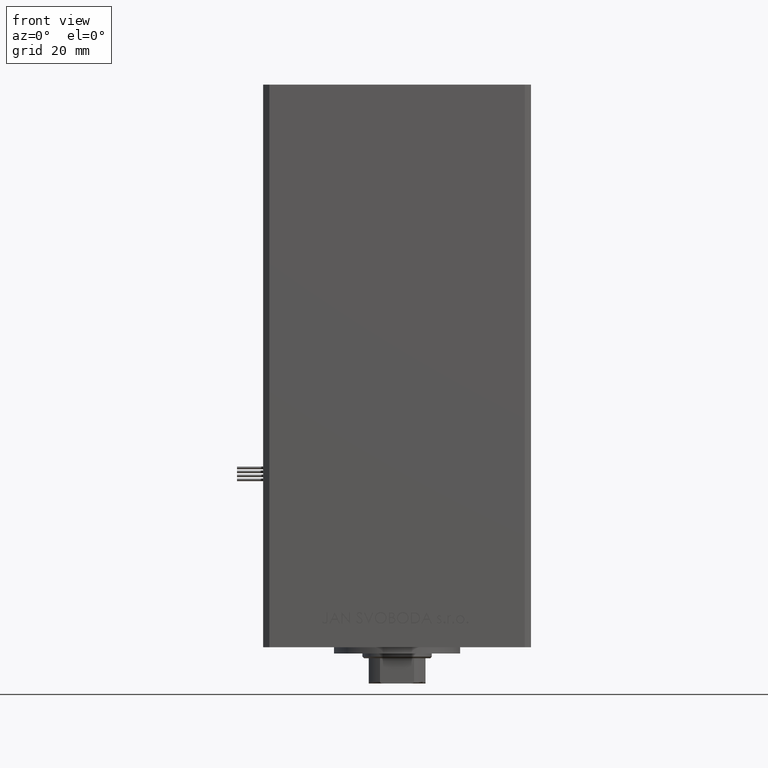
[diagram: clean part render]
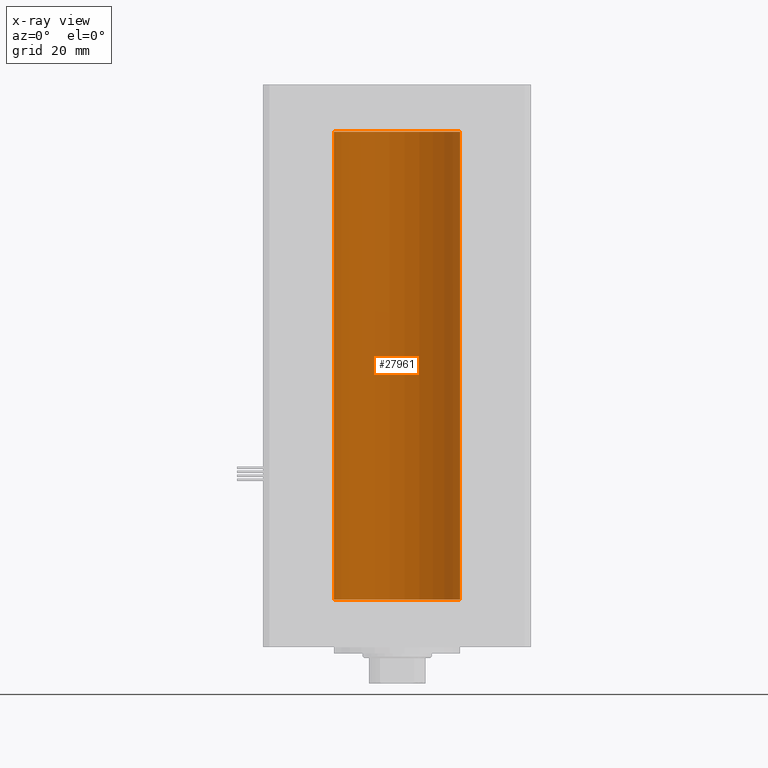
[diagram: x-ray — body ghosted, one internal face saturated and labeled with its STEP entity id]
A machine part, front view, then the same camera in x-ray: the body is ghosted and one INTERNAL B-rep face — a face not visible from any outside direction — is saturated and labeled: STEP entity #27961.
In plain terms, the highlighted cylindrical surface (partial cylindrical patch) has radius 20 mm, axis along (-0, -0, -1).
Its self-contained STEP definition (entity closure, byte-faithful):
#38 = AXIS2_PLACEMENT_3D ( 'NONE', #42258, #21186, #21443 ) ;
#1212 = EDGE_CURVE ( 'NONE', #47785, #5241, #5752, .T. ) ;
#1640 = DIRECTION ( 'NONE',  ( -0.000000000000000000, 0.000000000000000000, 1.000000000000000000 ) ) ;
#5241 = VERTEX_POINT ( 'NONE', #26907 ) ;
#5752 = CIRCLE ( 'NONE', #25981, 20.00000000000000000 ) ;
#5789 = VECTOR ( 'NONE', #30865, 1000.000000000000000 ) ;
#6362 = CARTESIAN_POINT ( 'NONE',  ( -20.00000000000000000, 0.000000000000000000, 148.5000000000000000 ) ) ;
#7317 = VERTEX_POINT ( 'NONE', #24080 ) ;
#7656 = CARTESIAN_POINT ( 'NONE',  ( 20.00000000000000000, 2.449293598294706513E-15, 0.000000000000000000 ) ) ;
#18947 = ORIENTED_EDGE ( 'NONE', *, *, #22543, .T. ) ;
#20841 = DIRECTION ( 'NONE',  ( -1.000000000000000000, 0.000000000000000000, 0.000000000000000000 ) ) ;
#20867 = ORIENTED_EDGE ( 'NONE', *, *, #1212, .F. ) ;
#21186 = DIRECTION ( 'NONE',  ( -0.000000000000000000, 0.000000000000000000, 1.000000000000000000 ) ) ;
#21443 = DIRECTION ( 'NONE',  ( 1.000000000000000000, 0.000000000000000000, 0.000000000000000000 ) ) ;
#22543 = EDGE_CURVE ( 'NONE', #7317, #50614, #45591, .T. ) ;
#23212 = LINE ( 'NONE', #23727, #5789 ) ;
#23727 = CARTESIAN_POINT ( 'NONE',  ( 20.00000000000000000, 2.449293598294706513E-15, 148.5000000000000000 ) ) ;
#24080 = CARTESIAN_POINT ( 'NONE',  ( 20.00000000000000000, 2.449293598294706513E-15, 148.5000000000000000 ) ) ;
#25981 = AXIS2_PLACEMENT_3D ( 'NONE', #30125, #1640, #46246 ) ;
#26907 = CARTESIAN_POINT ( 'NONE',  ( -20.00000000000000000, 0.000000000000000000, 0.000000000000000000 ) ) ;
#27961 = ADVANCED_FACE ( 'NONE', ( #48554 ), #36663, .F. ) ;
#30125 = CARTESIAN_POINT ( 'NONE',  ( 0.000000000000000000, 0.000000000000000000, 0.000000000000000000 ) ) ;
#30865 = DIRECTION ( 'NONE',  ( -0.000000000000000000, -0.000000000000000000, -1.000000000000000000 ) ) ;
#32478 = VECTOR ( 'NONE', #42110, 1000.000000000000000 ) ;
#35863 = EDGE_CURVE ( 'NONE', #50614, #5241, #40090, .T. ) ;
#36663 = CYLINDRICAL_SURFACE ( 'NONE', #44985, 20.00000000000000000 ) ;
#40090 = LINE ( 'NONE', #49015, #32478 ) ;
#40095 = CARTESIAN_POINT ( 'NONE',  ( 0.000000000000000000, 0.000000000000000000, 148.5000000000000000 ) ) ;
#41536 = ORIENTED_EDGE ( 'NONE', *, *, #35863, .T. ) ;
#42110 = DIRECTION ( 'NONE',  ( -0.000000000000000000, -0.000000000000000000, -1.000000000000000000 ) ) ;
#42258 = CARTESIAN_POINT ( 'NONE',  ( 0.000000000000000000, 0.000000000000000000, 148.5000000000000000 ) ) ;
#44985 = AXIS2_PLACEMENT_3D ( 'NONE', #40095, #51989, #20841 ) ;
#45591 = CIRCLE ( 'NONE', #38, 20.00000000000000000 ) ;
#46246 = DIRECTION ( 'NONE',  ( 1.000000000000000000, 0.000000000000000000, 0.000000000000000000 ) ) ;
#46664 = ORIENTED_EDGE ( 'NONE', *, *, #46803, .F. ) ;
#46803 = EDGE_CURVE ( 'NONE', #7317, #47785, #23212, .T. ) ;
#47785 = VERTEX_POINT ( 'NONE', #7656 ) ;
#48554 = FACE_OUTER_BOUND ( 'NONE', #49071, .T. ) ;
#49015 = CARTESIAN_POINT ( 'NONE',  ( -20.00000000000000000, 0.000000000000000000, 148.5000000000000000 ) ) ;
#49071 = EDGE_LOOP ( 'NONE', ( #46664, #18947, #41536, #20867 ) ) ;
#50614 = VERTEX_POINT ( 'NONE', #6362 ) ;
#51989 = DIRECTION ( 'NONE',  ( -0.000000000000000000, -0.000000000000000000, -1.000000000000000000 ) ) ;